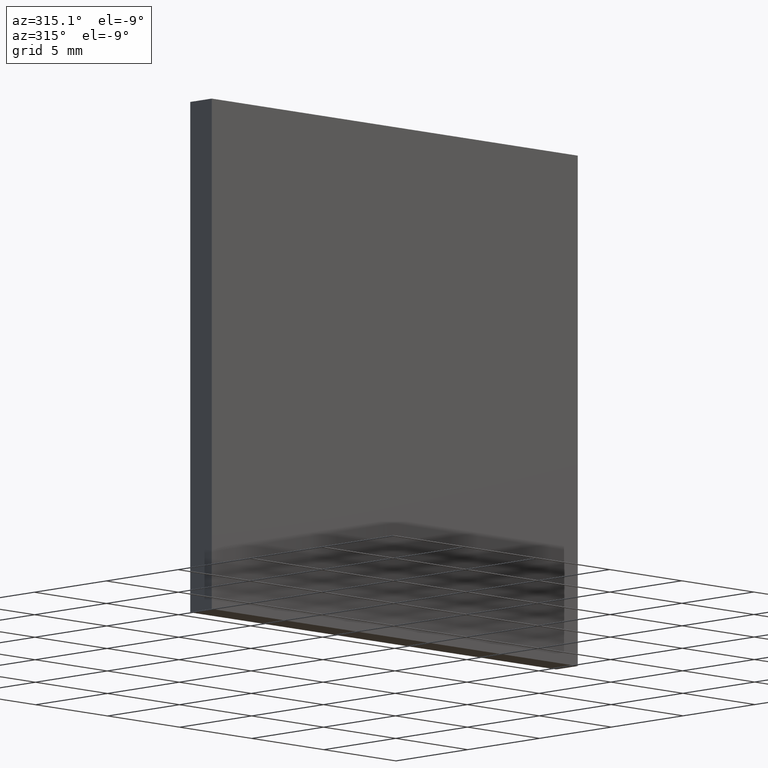
[diagram: clean part render]
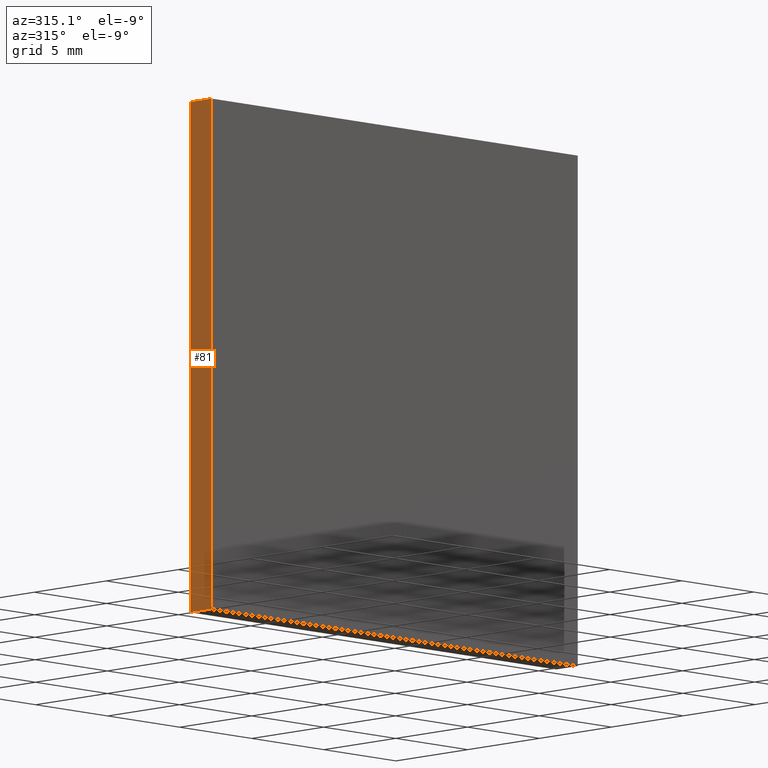
[diagram: same view with one face highlighted and labeled with its STEP entity id]
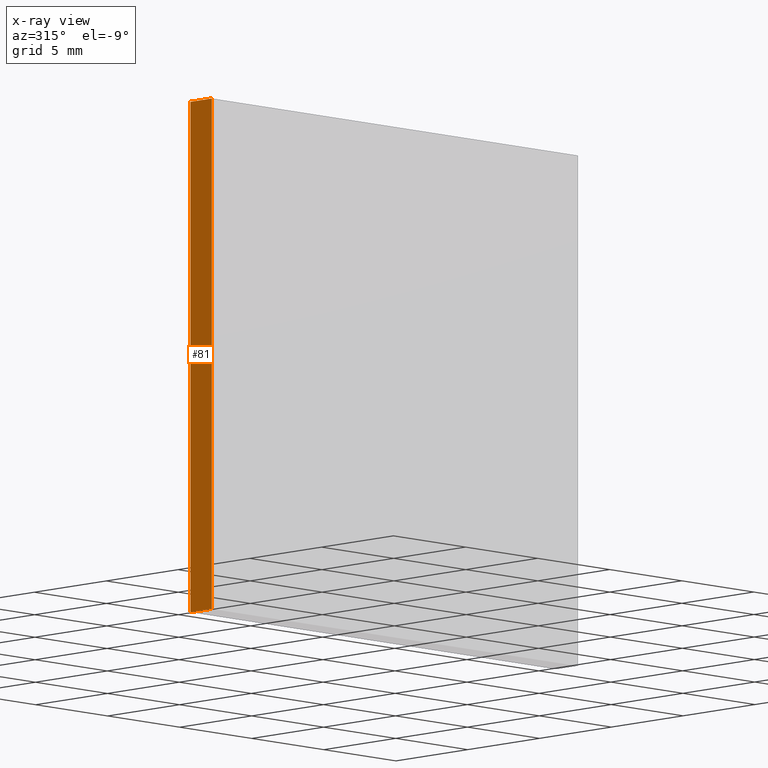
[diagram: x-ray of the same camera — body ghosted, the highlighted face saturated]
A machine part, auxiliary view. The second image highlights one B-rep face of the part: STEP entity #81.
The next image is the same camera in x-ray: the body ghosted, the highlighted face saturated — about 0% of this face is hidden behind the body in this view.
In plain terms, the highlighted planar face has unit normal (1, -0, 0).
Its self-contained STEP definition (entity closure, byte-faithful):
#1 = CARTESIAN_POINT ( 'NONE',  ( -12.70000000000000100, 0.0000000000000000000, -12.69999999999999800 ) ) ;
#4 = CARTESIAN_POINT ( 'NONE',  ( -12.70000000000000100, 1.500000000000000000, 12.69999999999999900 ) ) ;
#19 = CARTESIAN_POINT ( 'NONE',  ( -12.70000000000000100, 1.500000000000000000, -12.69999999999999800 ) ) ;
#36 = VECTOR ( 'NONE', #150, 1000.000000000000000 ) ;
#40 = DIRECTION ( 'NONE',  ( 0.0000000000000000000, 0.0000000000000000000, -1.000000000000000000 ) ) ;
#45 = VERTEX_POINT ( 'NONE', #145 ) ;
#48 = PLANE ( 'NONE',  #84 ) ;
#51 = EDGE_CURVE ( 'NONE', #132, #200, #86, .T. ) ;
#69 = FACE_OUTER_BOUND ( 'NONE', #161, .T. ) ;
#72 = DIRECTION ( 'NONE',  ( -0.0000000000000000000, -1.000000000000000000, -0.0000000000000000000 ) ) ;
#78 = ORIENTED_EDGE ( 'NONE', *, *, #191, .F. ) ;
#81 = ADVANCED_FACE ( 'NONE', ( #69 ), #48, .F. ) ;
#84 = AXIS2_PLACEMENT_3D ( 'NONE', #146, #163, #40 ) ;
#86 = LINE ( 'NONE', #123, #183 ) ;
#87 = EDGE_CURVE ( 'NONE', #132, #45, #190, .T. ) ;
#88 = DIRECTION ( 'NONE',  ( -0.0000000000000000000, -0.0000000000000000000, 1.000000000000000000 ) ) ;
#92 = EDGE_CURVE ( 'NONE', #200, #141, #104, .T. ) ;
#95 = LINE ( 'NONE', #133, #135 ) ;
#104 = LINE ( 'NONE', #116, #36 ) ;
#112 = ORIENTED_EDGE ( 'NONE', *, *, #87, .F. ) ;
#116 = CARTESIAN_POINT ( 'NONE',  ( -12.70000000000000100, 0.0000000000000000000, 12.69999999999999900 ) ) ;
#122 = ORIENTED_EDGE ( 'NONE', *, *, #51, .T. ) ;
#123 = CARTESIAN_POINT ( 'NONE',  ( -12.70000000000000100, 1.500000000000000000, -12.69999999999999800 ) ) ;
#132 = VERTEX_POINT ( 'NONE', #19 ) ;
#133 = CARTESIAN_POINT ( 'NONE',  ( -12.70000000000000100, 1.500000000000000000, 12.69999999999999900 ) ) ;
#134 = CARTESIAN_POINT ( 'NONE',  ( -12.70000000000000100, 0.0000000000000000000, 12.69999999999999900 ) ) ;
#135 = VECTOR ( 'NONE', #170, 1000.000000000000000 ) ;
#136 = VECTOR ( 'NONE', #88, 1000.000000000000000 ) ;
#141 = VERTEX_POINT ( 'NONE', #134 ) ;
#145 = CARTESIAN_POINT ( 'NONE',  ( -12.70000000000000100, 1.500000000000000000, 12.69999999999999900 ) ) ;
#146 = CARTESIAN_POINT ( 'NONE',  ( -12.70000000000000100, 1.500000000000000000, 12.69999999999999900 ) ) ;
#150 = DIRECTION ( 'NONE',  ( -0.0000000000000000000, -0.0000000000000000000, 1.000000000000000000 ) ) ;
#151 = ORIENTED_EDGE ( 'NONE', *, *, #92, .T. ) ;
#161 = EDGE_LOOP ( 'NONE', ( #151, #78, #112, #122 ) ) ;
#163 = DIRECTION ( 'NONE',  ( 1.000000000000000000, -0.0000000000000000000, 0.0000000000000000000 ) ) ;
#170 = DIRECTION ( 'NONE',  ( -0.0000000000000000000, -1.000000000000000000, -0.0000000000000000000 ) ) ;
#183 = VECTOR ( 'NONE', #72, 1000.000000000000000 ) ;
#190 = LINE ( 'NONE', #4, #136 ) ;
#191 = EDGE_CURVE ( 'NONE', #45, #141, #95, .T. ) ;
#200 = VERTEX_POINT ( 'NONE', #1 ) ;